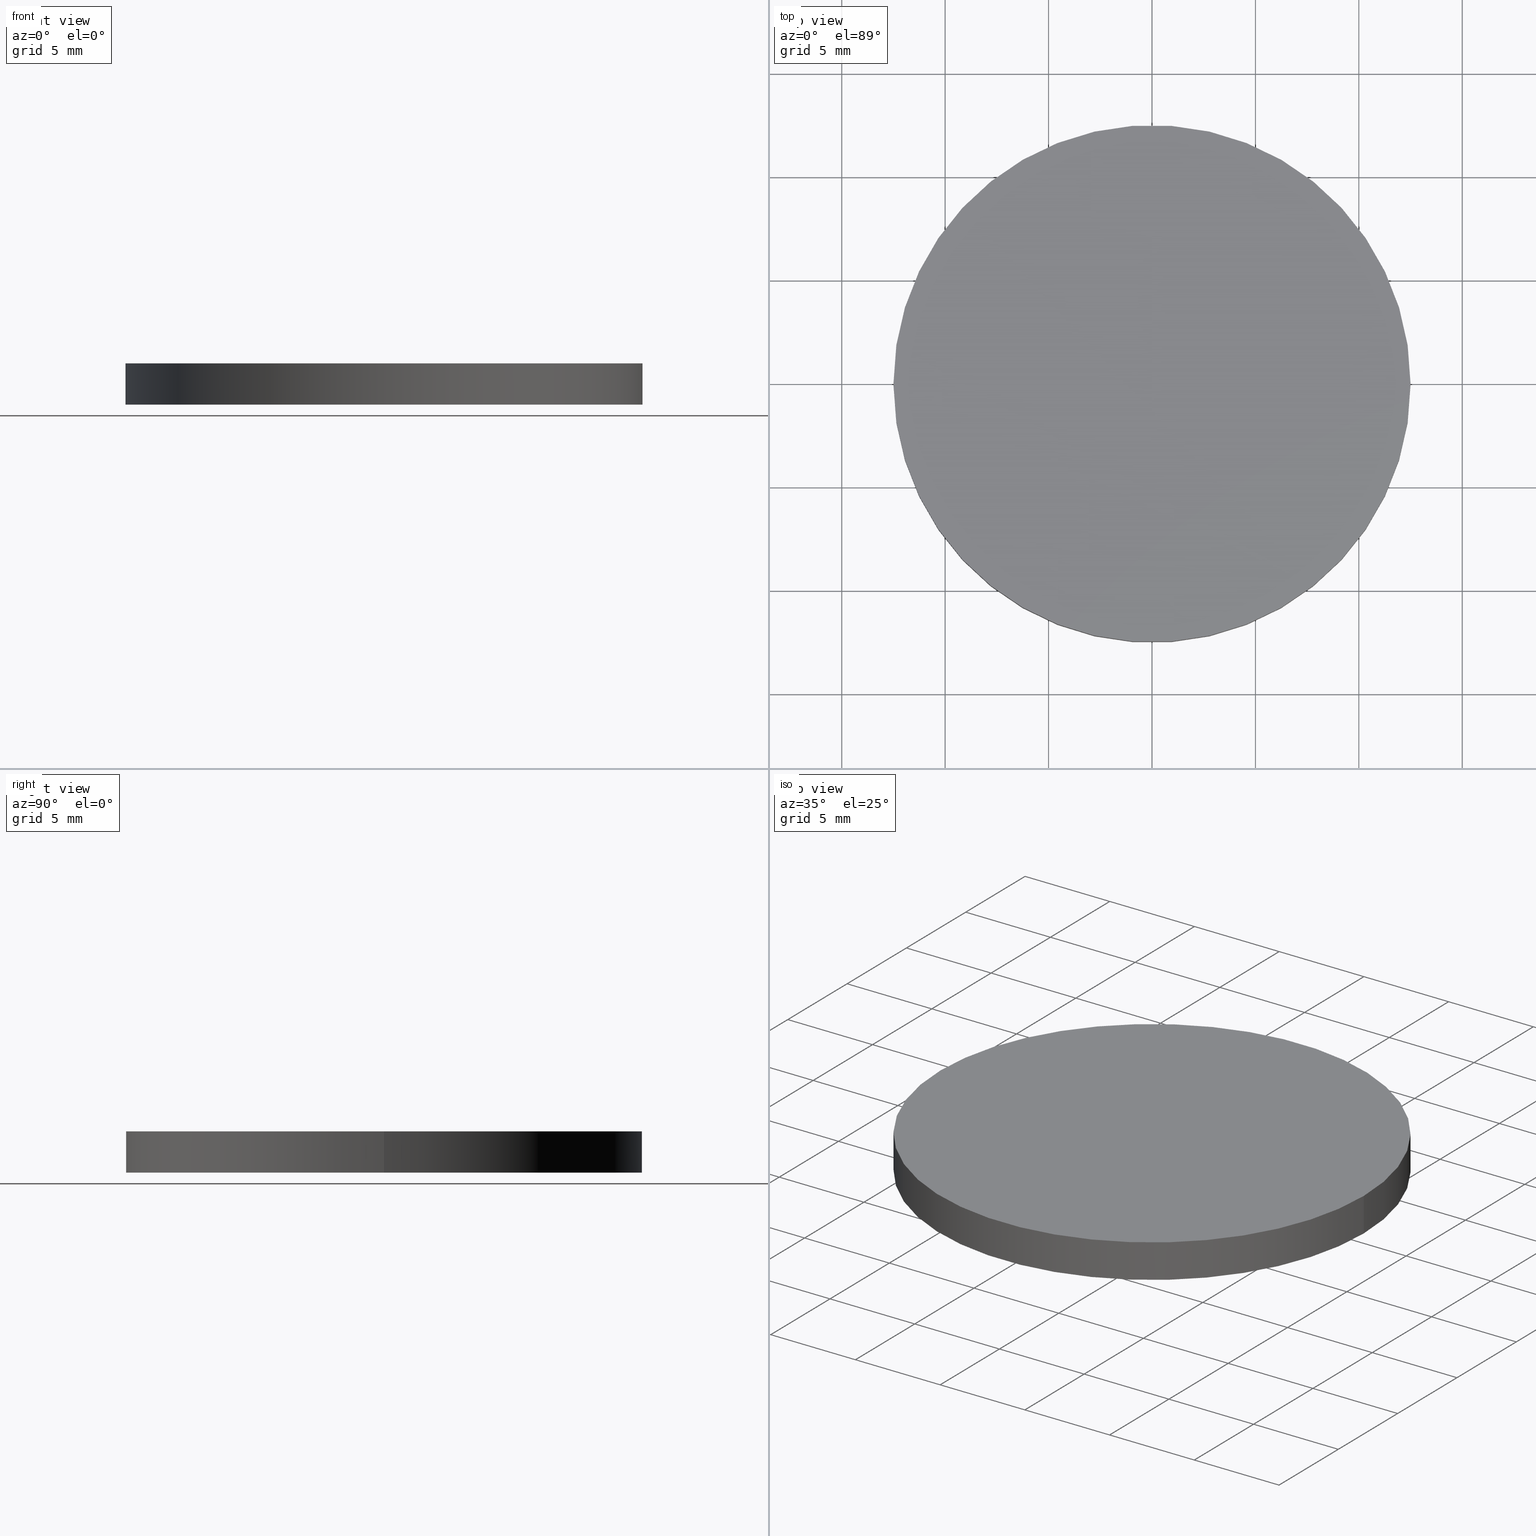
[diagram: canonical four-view strip — front | top / right | iso, engineering-drawing reading convention]
A machine part, canonical four-view strip (front | top / right | iso — engineering-drawing reading convention). The complete STEP part file that produces these views, byte-faithful:
ISO-10303-21;
HEADER;
FILE_DESCRIPTION (( 'STEP AP214' ),
    '1' );
FILE_NAME ('190005.STEP',
    '2019-07-15T05:44:20',
    ( 'user' ),
    ( '΢���й�' ),
    'SwSTEP 2.0',
    'SolidWorks 2016',
    '' );
FILE_SCHEMA (( 'AUTOMOTIVE_DESIGN' ));
ENDSEC;

DATA;
#1 = CIRCLE ( 'NONE', #61, 12.50000000000000000 ) ;
#2 = CARTESIAN_POINT ( 'NONE',  ( 0.0000000000000000000, 0.0000000000000000000, 0.0000000000000000000 ) ) ;
#3 = ADVANCED_FACE ( 'NONE', ( #124 ), #15, .T. ) ;
#4 = AXIS2_PLACEMENT_3D ( 'NONE', #65, #5, #34 ) ;
#5 = DIRECTION ( 'NONE',  ( 0.0000000000000000000, 0.0000000000000000000, 1.000000000000000000 ) ) ;
#6 = VECTOR ( 'NONE', #76, 1000.000000000000000 ) ;
#7 = DIRECTION ( 'NONE',  ( -0.0000000000000000000, -0.0000000000000000000, -1.000000000000000000 ) ) ;
#8 = ORIENTED_EDGE ( 'NONE', *, *, #120, .F. ) ;
#9 = DIRECTION ( 'NONE',  ( 0.0000000000000000000, 0.0000000000000000000, 1.000000000000000000 ) ) ;
#10 = APPLICATION_PROTOCOL_DEFINITION ( 'draft international standard', 'automotive_design', 1998, #138 ) ;
#11 = ORIENTED_EDGE ( 'NONE', *, *, #38, .F. ) ;
#12 = ORIENTED_EDGE ( 'NONE', *, *, #88, .F. ) ;
#13 = ORIENTED_EDGE ( 'NONE', *, *, #139, .T. ) ;
#14 = PRODUCT_DEFINITION ( 'δ֪', '', #110, #114 ) ;
#15 = CYLINDRICAL_SURFACE ( 'NONE', #86, 12.50000000000000000 ) ;
#16 = CARTESIAN_POINT ( 'NONE',  ( -12.50000000000000000, 0.0000000000000000000, 2.000000000000000000 ) ) ;
#17 =( GEOMETRIC_REPRESENTATION_CONTEXT ( 3 ) GLOBAL_UNCERTAINTY_ASSIGNED_CONTEXT ( ( #42 ) ) GLOBAL_UNIT_ASSIGNED_CONTEXT ( ( #45, #25, #101 ) ) REPRESENTATION_CONTEXT ( 'NONE', 'WORKASPACE' ) );
#18 = CARTESIAN_POINT ( 'NONE',  ( 0.0000000000000000000, 0.0000000000000000000, 2.000000000000000000 ) ) ;
#19 =( NAMED_UNIT ( * ) SI_UNIT ( $, .STERADIAN. ) SOLID_ANGLE_UNIT ( ) );
#20 = DIRECTION ( 'NONE',  ( 1.000000000000000000, 0.0000000000000000000, -0.0000000000000000000 ) ) ;
#21 = PRESENTATION_LAYER_ASSIGNMENT (  '', '', ( #118 ) ) ;
#22 = DIRECTION ( 'NONE',  ( 1.000000000000000000, 0.0000000000000000000, 0.0000000000000000000 ) ) ;
#23 = PLANE ( 'NONE',  #108 ) ;
#24 = DIRECTION ( 'NONE',  ( 0.0000000000000000000, 0.0000000000000000000, 1.000000000000000000 ) ) ;
#25 =( NAMED_UNIT ( * ) PLANE_ANGLE_UNIT ( ) SI_UNIT ( $, .RADIAN. ) );
#26 = SURFACE_STYLE_FILL_AREA ( #123 ) ;
#27 = CIRCLE ( 'NONE', #4, 12.50000000000000000 ) ;
#28 = EDGE_LOOP ( 'NONE', ( #12, #36 ) ) ;
#29 = AXIS2_PLACEMENT_3D ( 'NONE', #85, #9, #68 ) ;
#30 = CARTESIAN_POINT ( 'NONE',  ( 0.0000000000000000000, 0.0000000000000000000, 0.0000000000000000000 ) ) ;
#31 = CARTESIAN_POINT ( 'NONE',  ( 12.50000000000000000, 1.530808498934191500E-015, 0.0000000000000000000 ) ) ;
#32 = PRODUCT_DEFINITION_SHAPE ( 'NONE', 'NONE',  #14 ) ;
#33 = VERTEX_POINT ( 'NONE', #83 ) ;
#34 = DIRECTION ( 'NONE',  ( 1.000000000000000000, 0.0000000000000000000, 0.0000000000000000000 ) ) ;
#35 = FACE_OUTER_BOUND ( 'NONE', #89, .T. ) ;
#36 = ORIENTED_EDGE ( 'NONE', *, *, #112, .F. ) ;
#37 = CIRCLE ( 'NONE', #47, 12.50000000000000000 ) ;
#38 = EDGE_CURVE ( 'NONE', #33, #81, #91, .T. ) ;
#39 = CARTESIAN_POINT ( 'NONE',  ( 0.0000000000000000000, 0.0000000000000000000, 2.000000000000000000 ) ) ;
#40 = ADVANCED_FACE ( 'NONE', ( #55 ), #63, .T. ) ;
#41 = DIRECTION ( 'NONE',  ( 1.000000000000000000, 0.0000000000000000000, -0.0000000000000000000 ) ) ;
#42 = UNCERTAINTY_MEASURE_WITH_UNIT (LENGTH_MEASURE( 1.000000000000000100E-005 ), #45, 'distance_accuracy_value', 'NONE');
#43 = ORIENTED_EDGE ( 'NONE', *, *, #129, .T. ) ;
#44 = PRESENTATION_STYLE_ASSIGNMENT (( #111 ) ) ;
#45 =( LENGTH_UNIT ( ) NAMED_UNIT ( * ) SI_UNIT ( .MILLI., .METRE. ) );
#46 =( NAMED_UNIT ( * ) PLANE_ANGLE_UNIT ( ) SI_UNIT ( $, .RADIAN. ) );
#47 = AXIS2_PLACEMENT_3D ( 'NONE', #30, #94, #22 ) ;
#48 = ORIENTED_EDGE ( 'NONE', *, *, #129, .F. ) ;
#49 = VECTOR ( 'NONE', #97, 1000.000000000000000 ) ;
#50 = SURFACE_SIDE_STYLE ('',( #64 ) ) ;
#51 = SURFACE_STYLE_USAGE ( .BOTH. , #126 ) ;
#52 = UNCERTAINTY_MEASURE_WITH_UNIT (LENGTH_MEASURE( 1.000000000000000100E-005 ), #113, 'distance_accuracy_value', 'NONE');
#53 = EDGE_LOOP ( 'NONE', ( #54, #130 ) ) ;
#54 = ORIENTED_EDGE ( 'NONE', *, *, #38, .T. ) ;
#55 = FACE_OUTER_BOUND ( 'NONE', #53, .T. ) ;
#56 = PRODUCT ( '190005', '190005', '', ( #137 ) ) ;
#57 = DIRECTION ( 'NONE',  ( 0.0000000000000000000, 0.0000000000000000000, 1.000000000000000000 ) ) ;
#58 = DIRECTION ( 'NONE',  ( -0.0000000000000000000, -0.0000000000000000000, -1.000000000000000000 ) ) ;
#59 = DIRECTION ( 'NONE',  ( 0.0000000000000000000, 0.0000000000000000000, 1.000000000000000000 ) ) ;
#60 = APPLICATION_CONTEXT ( 'automotive_design' ) ;
#61 = AXIS2_PLACEMENT_3D ( 'NONE', #2, #57, #131 ) ;
#62 = COLOUR_RGB ( '',1.000000000000000000, 1.000000000000000000, 1.000000000000000000 ) ;
#63 = PLANE ( 'NONE',  #66 ) ;
#64 = SURFACE_STYLE_FILL_AREA ( #125 ) ;
#65 = CARTESIAN_POINT ( 'NONE',  ( 0.0000000000000000000, 0.0000000000000000000, 2.000000000000000000 ) ) ;
#66 = AXIS2_PLACEMENT_3D ( 'NONE', #82, #90, #20 ) ;
#67 = ORIENTED_EDGE ( 'NONE', *, *, #88, .T. ) ;
#68 = DIRECTION ( 'NONE',  ( 1.000000000000000000, 0.0000000000000000000, 0.0000000000000000000 ) ) ;
#69 =( NAMED_UNIT ( * ) PLANE_ANGLE_UNIT ( ) SI_UNIT ( $, .RADIAN. ) );
#70 = CYLINDRICAL_SURFACE ( 'NONE', #92, 12.50000000000000000 ) ;
#71 = DIRECTION ( 'NONE',  ( 1.000000000000000000, 0.0000000000000000000, 0.0000000000000000000 ) ) ;
#72 = PRODUCT_RELATED_PRODUCT_CATEGORY ( 'part', '', ( #56 ) ) ;
#73 = UNCERTAINTY_MEASURE_WITH_UNIT (LENGTH_MEASURE( 1.000000000000000100E-005 ), #133, 'distance_accuracy_value', 'NONE');
#74 = LINE ( 'NONE', #115, #49 ) ;
#75 = DIRECTION ( 'NONE',  ( -1.000000000000000000, 0.0000000000000000000, 0.0000000000000000000 ) ) ;
#76 = DIRECTION ( 'NONE',  ( -0.0000000000000000000, -0.0000000000000000000, -1.000000000000000000 ) ) ;
#77 = ADVANCED_FACE ( 'NONE', ( #119 ), #23, .F. ) ;
#78 =( GEOMETRIC_REPRESENTATION_CONTEXT ( 3 ) GLOBAL_UNCERTAINTY_ASSIGNED_CONTEXT ( ( #52 ) ) GLOBAL_UNIT_ASSIGNED_CONTEXT ( ( #113, #46, #102 ) ) REPRESENTATION_CONTEXT ( 'NONE', 'WORKASPACE' ) );
#79 = FILL_AREA_STYLE_COLOUR ( '', #62 ) ;
#80 = LINE ( 'NONE', #16, #6 ) ;
#81 = VERTEX_POINT ( 'NONE', #121 ) ;
#82 = CARTESIAN_POINT ( 'NONE',  ( 0.0000000000000000000, 0.0000000000000000000, 2.000000000000000000 ) ) ;
#83 = CARTESIAN_POINT ( 'NONE',  ( -12.50000000000000000, 0.0000000000000000000, 2.000000000000000000 ) ) ;
#84 = VERTEX_POINT ( 'NONE', #31 ) ;
#85 = CARTESIAN_POINT ( 'NONE',  ( 0.0000000000000000000, 0.0000000000000000000, 0.0000000000000000000 ) ) ;
#86 = AXIS2_PLACEMENT_3D ( 'NONE', #18, #7, #135 ) ;
#87 = SHAPE_DEFINITION_REPRESENTATION ( #32, #109 ) ;
#88 = EDGE_CURVE ( 'NONE', #105, #84, #1, .T. ) ;
#89 = EDGE_LOOP ( 'NONE', ( #8, #13, #122, #48 ) ) ;
#90 = DIRECTION ( 'NONE',  ( 0.0000000000000000000, 0.0000000000000000000, 1.000000000000000000 ) ) ;
#91 = CIRCLE ( 'NONE', #95, 12.50000000000000000 ) ;
#92 = AXIS2_PLACEMENT_3D ( 'NONE', #39, #58, #75 ) ;
#93 = PRESENTATION_LAYER_ASSIGNMENT (  '', '', ( #103 ) ) ;
#94 = DIRECTION ( 'NONE',  ( 0.0000000000000000000, 0.0000000000000000000, 1.000000000000000000 ) ) ;
#95 = AXIS2_PLACEMENT_3D ( 'NONE', #96, #24, #71 ) ;
#96 = CARTESIAN_POINT ( 'NONE',  ( 0.0000000000000000000, 0.0000000000000000000, 2.000000000000000000 ) ) ;
#97 = DIRECTION ( 'NONE',  ( -0.0000000000000000000, -0.0000000000000000000, -1.000000000000000000 ) ) ;
#98 = PRESENTATION_STYLE_ASSIGNMENT (( #51 ) ) ;
#99 = CARTESIAN_POINT ( 'NONE',  ( -12.50000000000000000, 0.0000000000000000000, 0.0000000000000000000 ) ) ;
#100 = APPLICATION_PROTOCOL_DEFINITION ( 'draft international standard', 'automotive_design', 1998, #60 ) ;
#101 =( NAMED_UNIT ( * ) SI_UNIT ( $, .STERADIAN. ) SOLID_ANGLE_UNIT ( ) );
#102 =( NAMED_UNIT ( * ) SI_UNIT ( $, .STERADIAN. ) SOLID_ANGLE_UNIT ( ) );
#103 = STYLED_ITEM ( 'NONE', ( #44 ), #109 ) ;
#104 = COLOUR_RGB ( '',1.000000000000000000, 1.000000000000000000, 1.000000000000000000 ) ;
#105 = VERTEX_POINT ( 'NONE', #99 ) ;
#106 = MECHANICAL_DESIGN_GEOMETRIC_PRESENTATION_REPRESENTATION (  '', ( #103 ), #17 ) ;
#107 = CARTESIAN_POINT ( 'NONE',  ( 0.0000000000000000000, 0.0000000000000000000, 0.0000000000000000000 ) ) ;
#108 = AXIS2_PLACEMENT_3D ( 'NONE', #107, #59, #41 ) ;
#109 = ADVANCED_BREP_SHAPE_REPRESENTATION ( '190005', ( #140, #29 ), #128 ) ;
#110 = PRODUCT_DEFINITION_FORMATION_WITH_SPECIFIED_SOURCE ( '�κ�', '', #56, .NOT_KNOWN. ) ;
#111 = SURFACE_STYLE_USAGE ( .BOTH. , #50 ) ;
#112 = EDGE_CURVE ( 'NONE', #84, #105, #37, .T. ) ;
#113 =( LENGTH_UNIT ( ) NAMED_UNIT ( * ) SI_UNIT ( .MILLI., .METRE. ) );
#114 = PRODUCT_DEFINITION_CONTEXT ( 'detailed design', #60, 'design' ) ;
#115 = CARTESIAN_POINT ( 'NONE',  ( 12.50000000000000000, 1.530808498934191500E-015, 2.000000000000000000 ) ) ;
#116 = ORIENTED_EDGE ( 'NONE', *, *, #139, .F. ) ;
#117 = EDGE_LOOP ( 'NONE', ( #116, #11, #43, #67 ) ) ;
#118 = STYLED_ITEM ( 'NONE', ( #98 ), #140 ) ;
#119 = FACE_OUTER_BOUND ( 'NONE', #28, .T. ) ;
#120 = EDGE_CURVE ( 'NONE', #81, #33, #27, .T. ) ;
#121 = CARTESIAN_POINT ( 'NONE',  ( 12.50000000000000000, 1.530808498934191500E-015, 2.000000000000000000 ) ) ;
#122 = ORIENTED_EDGE ( 'NONE', *, *, #112, .T. ) ;
#123 = FILL_AREA_STYLE ('',( #79 ) ) ;
#124 = FACE_OUTER_BOUND ( 'NONE', #117, .T. ) ;
#125 = FILL_AREA_STYLE ('',( #136 ) ) ;
#126 = SURFACE_SIDE_STYLE ('',( #26 ) ) ;
#127 = CLOSED_SHELL ( 'NONE', ( #132, #3, #40, #77 ) ) ;
#128 =( GEOMETRIC_REPRESENTATION_CONTEXT ( 3 ) GLOBAL_UNCERTAINTY_ASSIGNED_CONTEXT ( ( #73 ) ) GLOBAL_UNIT_ASSIGNED_CONTEXT ( ( #133, #69, #19 ) ) REPRESENTATION_CONTEXT ( 'NONE', 'WORKASPACE' ) );
#129 = EDGE_CURVE ( 'NONE', #33, #105, #80, .T. ) ;
#130 = ORIENTED_EDGE ( 'NONE', *, *, #120, .T. ) ;
#131 = DIRECTION ( 'NONE',  ( 1.000000000000000000, 0.0000000000000000000, 0.0000000000000000000 ) ) ;
#132 = ADVANCED_FACE ( 'NONE', ( #35 ), #70, .T. ) ;
#133 =( LENGTH_UNIT ( ) NAMED_UNIT ( * ) SI_UNIT ( .MILLI., .METRE. ) );
#134 = MECHANICAL_DESIGN_GEOMETRIC_PRESENTATION_REPRESENTATION (  '', ( #118 ), #78 ) ;
#135 = DIRECTION ( 'NONE',  ( -1.000000000000000000, 0.0000000000000000000, 0.0000000000000000000 ) ) ;
#136 = FILL_AREA_STYLE_COLOUR ( '', #104 ) ;
#137 = PRODUCT_CONTEXT ( 'NONE', #138, 'mechanical' ) ;
#138 = APPLICATION_CONTEXT ( 'automotive_design' ) ;
#139 = EDGE_CURVE ( 'NONE', #81, #84, #74, .T. ) ;
#140 = MANIFOLD_SOLID_BREP ( '͹̨-����1', #127 ) ;
ENDSEC;
END-ISO-10303-21;
